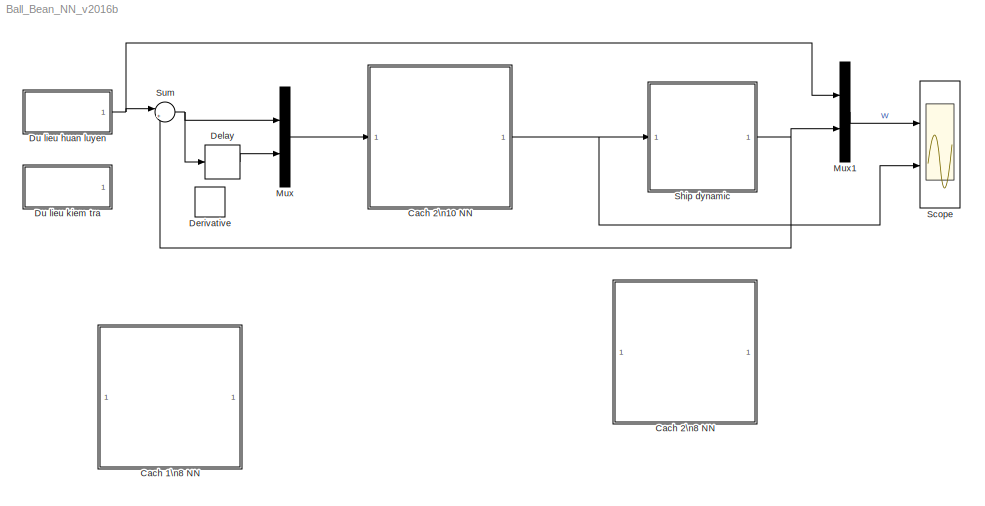
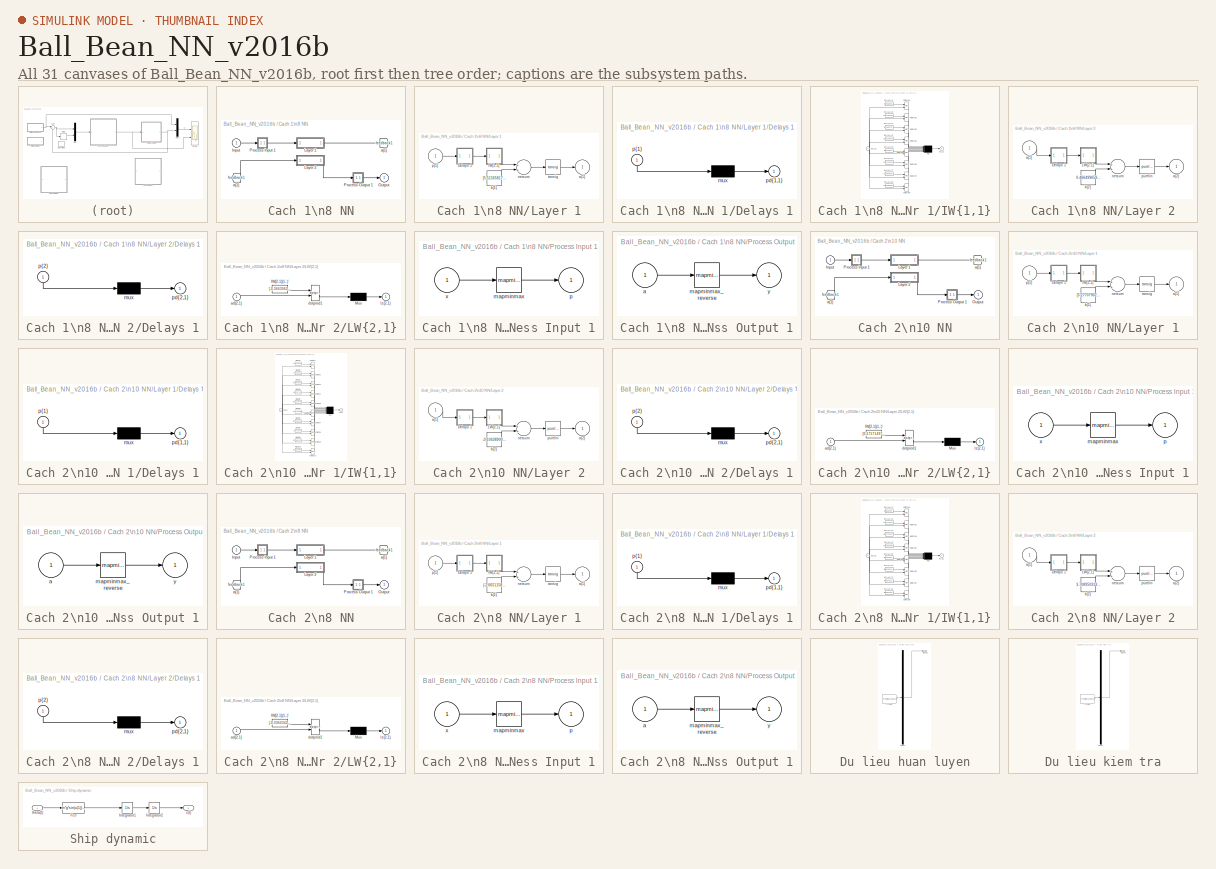
[diagram: thumbnail index - all 31 canvases of the model, root first then tree order]
MODEL Ball_Bean_NN_v2016b
KIND model
BLOCK [SubSystem] Cach 1\n8 NN
  Ports = [1, 1]
  RequestExecContextInheritance = off
  SID = 747
BLOCK [From] Cach 1\n8 NN/ a{1} 
  GotoTag = feedback1
  SID = 749
BLOCK [Inport] Cach 1\n8 NN/Input
  IconDisplay = Port number
  PortDimensions = 2
  SID = 748
BLOCK [SubSystem] Cach 1\n8 NN/Layer 1
  Ports = [1, 1]
  RequestExecContextInheritance = off
  SID = 750
BLOCK [SubSystem] Cach 1\n8 NN/Layer 1/Delays 1
  Ports = [1, 1]
  RequestExecContextInheritance = off
  SID = 752
BLOCK [Mux] Cach 1\n8 NN/Layer 1/Delays 1/mux
  Inputs = 1
  Ports = [1, 1]
  SID = 754
BLOCK [Outport] Cach 1\n8 NN/Layer 1/Delays 1/pd{1,1}
  IconDisplay = Port number
  SID = 755
BLOCK [Inport] Cach 1\n8 NN/Layer 1/Delays 1/p{1}
  IconDisplay = Port number
  PortDimensions = 2
  SID = 753
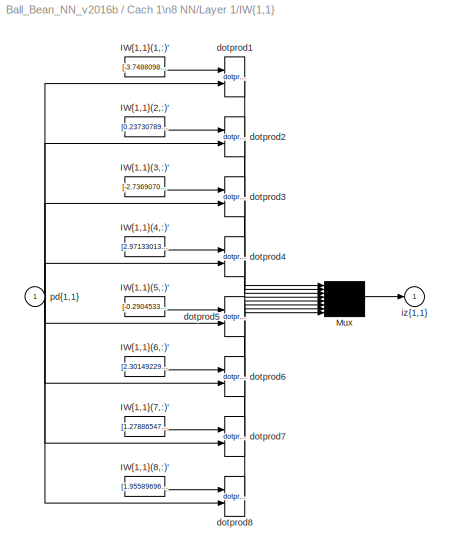
BLOCK [SubSystem] Cach 1\n8 NN/Layer 1/IW{1,1}
  Ports = [1, 1]
  RequestExecContextInheritance = off
  SID = 756
BLOCK [Constant] Cach 1\n8 NN/Layer 1/IW{1,1}/IW{1,1}(1,:)'
  SID = 758
  Value = [-3.7488098047373608068255634861998260021209716796875;0.045736782493255252746156003240685095079243183135986328125]
BLOCK [Constant] Cach 1\n8 NN/Layer 1/IW{1,1}/IW{1,1}(2,:)'
  SID = 759
  Value = [0.237307890926560627331554087504628114402294158935546875;4.997049988441521151116830878891050815582275390625]
BLOCK [Constant] Cach 1\n8 NN/Layer 1/IW{1,1}/IW{1,1}(3,:)'
  SID = 760
  Value = [-2.736907026698035760858829235075972974300384521484375;-3.9401746217218533985260364715941250324249267578125]
BLOCK [Constant] Cach 1\n8 NN/Layer 1/IW{1,1}/IW{1,1}(4,:)'
  SID = 761
  Value = [2.97133013131008549834177756565622985363006591796875;-0.78026636739935228970210800980567000806331634521484375]
BLOCK [Constant] Cach 1\n8 NN/Layer 1/IW{1,1}/IW{1,1}(5,:)'
  SID = 762
  Value = [-0.29045339392154245761190622943104244768619537353515625;-13.1257416849211683285147955757565796375274658203125]
BLOCK [Constant] Cach 1\n8 NN/Layer 1/IW{1,1}/IW{1,1}(6,:)'
  SID = 763
  Value = [2.30149229776702224370410476694814860820770263671875;3.311412799129558326427513748058117926120758056640625]
BLOCK [Constant] Cach 1\n8 NN/Layer 1/IW{1,1}/IW{1,1}(7,:)'
  SID = 764
  Value = [1.2788654714814768897923613621969707310199737548828125;-3.517836685005239161228018929250538349151611328125]
BLOCK [Constant] Cach 1\n8 NN/Layer 1/IW{1,1}/IW{1,1}(8,:)'
  SID = 765
  Value = [1.95589696698412662811961126863025128841400146484375;3.269084294186064720832973762298934161663055419921875]
BLOCK [Mux] Cach 1\n8 NN/Layer 1/IW{1,1}/Mux
  Inputs = 8
  Ports = [8, 1]
  SID = 766
BLOCK [Reference] Cach 1\n8 NN/Layer 1/IW{1,1}/dotprod1  REF=neural/Weight Functions/dotprod
  Ports = [2, 1]
  SID = 767
  SourceBlock = neural/Weight Functions/dotprod
  SourceType = DOTPROD
BLOCK [Reference] Cach 1\n8 NN/Layer 1/IW{1,1}/dotprod2  REF=neural/Weight Functions/dotprod
  Ports = [2, 1]
  SID = 768
  SourceBlock = neural/Weight Functions/dotprod
  SourceType = DOTPROD
BLOCK [Reference] Cach 1\n8 NN/Layer 1/IW{1,1}/dotprod3  REF=neural/Weight Functions/dotprod
  Ports = [2, 1]
  SID = 769
  SourceBlock = neural/Weight Functions/dotprod
  SourceType = DOTPROD
BLOCK [Reference] Cach 1\n8 NN/Layer 1/IW{1,1}/dotprod4  REF=neural/Weight Functions/dotprod
  Ports = [2, 1]
  SID = 770
  SourceBlock = neural/Weight Functions/dotprod
  SourceType = DOTPROD
BLOCK [Reference] Cach 1\n8 NN/Layer 1/IW{1,1}/dotprod5  REF=neural/Weight Functions/dotprod
  Ports = [2, 1]
  SID = 771
  SourceBlock = neural/Weight Functions/dotprod
  SourceType = DOTPROD
BLOCK [Reference] Cach 1\n8 NN/Layer 1/IW{1,1}/dotprod6  REF=neural/Weight Functions/dotprod
  Ports = [2, 1]
  SID = 772
  SourceBlock = neural/Weight Functions/dotprod
  SourceType = DOTPROD
BLOCK [Reference] Cach 1\n8 NN/Layer 1/IW{1,1}/dotprod7  REF=neural/Weight Functions/dotprod
  Ports = [2, 1]
  SID = 773
  SourceBlock = neural/Weight Functions/dotprod
  SourceType = DOTPROD
BLOCK [Reference] Cach 1\n8 NN/Layer 1/IW{1,1}/dotprod8  REF=neural/Weight Functions/dotprod
  Ports = [2, 1]
  SID = 774
  SourceBlock = neural/Weight Functions/dotprod
  SourceType = DOTPROD
BLOCK [Outport] Cach 1\n8 NN/Layer 1/IW{1,1}/iz{1,1}
  IconDisplay = Port number
  SID = 775
BLOCK [Inport] Cach 1\n8 NN/Layer 1/IW{1,1}/pd{1,1}
  IconDisplay = Port number
  PortDimensions = 2
  SID = 757
BLOCK [Outport] Cach 1\n8 NN/Layer 1/a{1}
  IconDisplay = Port number
  InitialOutput = [0;0;0;0;0;0;0;0]
  SID = 779
BLOCK [Constant] Cach 1\n8 NN/Layer 1/b{1}
  SID = 776
  Value = [5.5156581737566572343212101259268820285797119140625;0.41542198148677511593263034228584729135036468505859375;0.257346203482560376141208280387218110263347625732421875;-0.091240873919497589294991257702349685132503509521484375;-0.2950688313557885411597681013518013060092926025390625;3.6762636291859251969071920029819011688232421875;3.17671884908309554162997301318682730197906494140625;4.0416236971910333...<+34ch>
BLOCK [Sum] Cach 1\n8 NN/Layer 1/netsum
  Inputs = 2
  Ports = [2, 1]
  SID = 777
BLOCK [Inport] Cach 1\n8 NN/Layer 1/p{1}
  IconDisplay = Port number
  PortDimensions = 2
  SID = 751
BLOCK [Reference] Cach 1\n8 NN/Layer 1/tansig  REF=neural/Transfer Functions/tansig
  Ports = [1, 1]
  SID = 778
  SourceBlock = neural/Transfer Functions/tansig
  SourceType = TANSIG
BLOCK [SubSystem] Cach 1\n8 NN/Layer 2
  Ports = [1, 1]
  RequestExecContextInheritance = off
  SID = 780
BLOCK [SubSystem] Cach 1\n8 NN/Layer 2/Delays 1
  Ports = [1, 1]
  RequestExecContextInheritance = off
  SID = 782
BLOCK [Mux] Cach 1\n8 NN/Layer 2/Delays 1/mux
  Inputs = 1
  Ports = [1, 1]
  SID = 784
BLOCK [Outport] Cach 1\n8 NN/Layer 2/Delays 1/pd{2,1}
  IconDisplay = Port number
  SID = 785
BLOCK [Inport] Cach 1\n8 NN/Layer 2/Delays 1/p{2}
  IconDisplay = Port number
  PortDimensions = 8
  SID = 783
BLOCK [SubSystem] Cach 1\n8 NN/Layer 2/LW{2,1}
  Ports = [1, 1]
  RequestExecContextInheritance = off
  SID = 786
BLOCK [Constant] Cach 1\n8 NN/Layer 2/LW{2,1}/IW{2,1}(1,:)'
  SID = 788
  Value = [-0.3663062943517163549955739654251374304294586181640625;-4.74951698107200126486304725403897464275360107421875;0.2113194431993334898578495995025150477886199951171875;0.431504323669025302567803237252519465982913970947265625;-5.13030340469543855164147316827438771724700927734375;0.2472305967310420016236349738392163999378681182861328125;-0.20942302946738100555279515901929698884487152099609375;0.242214...<+49ch>
BLOCK [Mux] Cach 1\n8 NN/Layer 2/LW{2,1}/Mux
  Inputs = 1
  Ports = [1, 1]
  SID = 789
BLOCK [Inport] Cach 1\n8 NN/Layer 2/LW{2,1}/ad{2,1}
  IconDisplay = Port number
  PortDimensions = 8
  SID = 787
BLOCK [Reference] Cach 1\n8 NN/Layer 2/LW{2,1}/dotprod1  REF=neural/Weight Functions/dotprod
  Ports = [2, 1]
  SID = 790
  SourceBlock = neural/Weight Functions/dotprod
  SourceType = DOTPROD
BLOCK [Outport] Cach 1\n8 NN/Layer 2/LW{2,1}/lz{2,1}
  IconDisplay = Port number
  SID = 791
BLOCK [Inport] Cach 1\n8 NN/Layer 2/a{1} 
  IconDisplay = Port number
  PortDimensions = 8
  SID = 781
BLOCK [Outport] Cach 1\n8 NN/Layer 2/a{2}
  IconDisplay = Port number
  InitialOutput = 0
  SID = 795
BLOCK [Constant] Cach 1\n8 NN/Layer 2/b{2}
  SID = 792
  Value = 0.4664996596032013886912181988009251654148101806640625
BLOCK [Sum] Cach 1\n8 NN/Layer 2/netsum
  Inputs = 2
  Ports = [2, 1]
  SID = 793
BLOCK [Reference] Cach 1\n8 NN/Layer 2/purelin  REF=neural/Transfer Functions/purelin
  Ports = [1, 1]
  SID = 794
  SourceBlock = neural/Transfer Functions/purelin
  SourceType = PURELIN
BLOCK [Outport] Cach 1\n8 NN/Output
  IconDisplay = Port number
  InitialOutput = 0
  SID = 805
BLOCK [SubSystem] Cach 1\n8 NN/Process Input 1
  Ports = [1, 1]
  RequestExecContextInheritance = off
  SID = 796
BLOCK [Reference] Cach 1\n8 NN/Process Input 1/mapminmax  REF=neural/Processing Functions/mapminmax
  Ports = [1, 1]
  SID = 798
  SourceBlock = neural/Processing Functions/mapminmax
  SourceType = MAPMINMAX Preprocess
  xmax = [1.79481870778020380363670938095;35.9001145869152438194760179613]
  xmin = [-1.79489567973838592962465554592;-35.9000659257596055340400198475]
  ymax = 1
  ymin = -1
BLOCK [Outport] Cach 1\n8 NN/Process Input 1/p
  IconDisplay = Port number
  PortDimensions = 2
  SID = 799
BLOCK [Inport] Cach 1\n8 NN/Process Input 1/x
  IconDisplay = Port number
  PortDimensions = 2
  SID = 797
BLOCK [SubSystem] Cach 1\n8 NN/Process Output 1
  Ports = [1, 1]
  RequestExecContextInheritance = off
  SID = 800
BLOCK [Inport] Cach 1\n8 NN/Process Output 1/a
  IconDisplay = Port number
  PortDimensions = 1
  SID = 801
BLOCK [Reference] Cach 1\n8 NN/Process Output 1/mapminmax_reverse  REF=neural/Processing Functions/mapminmax_reverse
  Ports = [1, 1]
  SID = 802
  SourceBlock = neural/Processing Functions/mapminmax_reverse
  SourceType = MAPMINMAX Reverse Process
  xmax = 0.523598775598298815658893090585
  xmin = -0.523598775598298815658893090585
  ymax = 1
  ymin = -1
BLOCK [Outport] Cach 1\n8 NN/Process Output 1/y
  IconDisplay = Port number
  PortDimensions = 1
  SID = 803
BLOCK [Goto] Cach 1\n8 NN/a{1}
  GotoTag = feedback1
  SID = 804
BLOCK [SubSystem] Cach 2\n10 NN
  Ports = [1, 1]
  RequestExecContextInheritance = off
  SID = 684
BLOCK [From] Cach 2\n10 NN/ a{1} 
  GotoTag = feedback1
  SID = 686
BLOCK [Inport] Cach 2\n10 NN/Input
  IconDisplay = Port number
  PortDimensions = 2
  SID = 685
BLOCK [SubSystem] Cach 2\n10 NN/Layer 1
  Ports = [1, 1]
  RequestExecContextInheritance = off
  SID = 687
BLOCK [SubSystem] Cach 2\n10 NN/Layer 1/Delays 1
  Ports = [1, 1]
  RequestExecContextInheritance = off
  SID = 689
BLOCK [Mux] Cach 2\n10 NN/Layer 1/Delays 1/mux
  Inputs = 1
  Ports = [1, 1]
  SID = 691
BLOCK [Outport] Cach 2\n10 NN/Layer 1/Delays 1/pd{1,1}
  IconDisplay = Port number
  SID = 692
BLOCK [Inport] Cach 2\n10 NN/Layer 1/Delays 1/p{1}
  IconDisplay = Port number
  PortDimensions = 2
  SID = 690
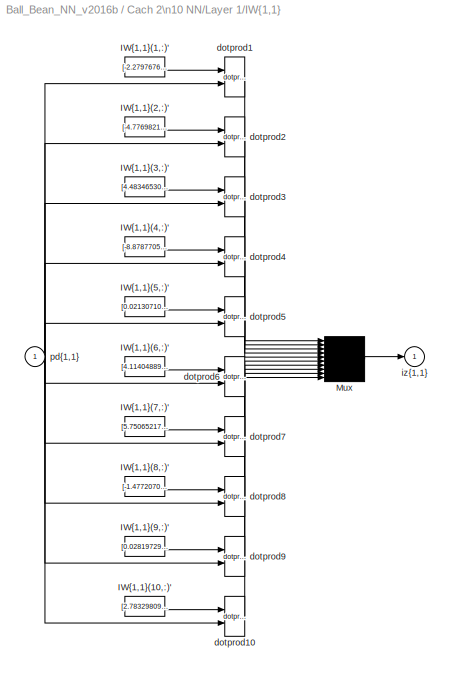
BLOCK [SubSystem] Cach 2\n10 NN/Layer 1/IW{1,1}
  Ports = [1, 1]
  RequestExecContextInheritance = off
  SID = 693
BLOCK [Constant] Cach 2\n10 NN/Layer 1/IW{1,1}/IW{1,1}(1,:)'
  SID = 695
  Value = [-2.2797676552253971493655626545660197734832763671875;-3.502244958718492728877436093171127140522003173828125]
BLOCK [Constant] Cach 2\n10 NN/Layer 1/IW{1,1}/IW{1,1}(10,:)'
  SID = 696
  Value = [2.783298096638222585141875242698006331920623779296875;-2.62667784662431103015478583984076976776123046875]
BLOCK [Constant] Cach 2\n10 NN/Layer 1/IW{1,1}/IW{1,1}(2,:)'
  SID = 697
  Value = [-4.77698212087745677223438178771175444126129150390625;1.701666339482249323822316000587306916713714599609375]
BLOCK [Constant] Cach 2\n10 NN/Layer 1/IW{1,1}/IW{1,1}(3,:)'
  SID = 698
  Value = [4.48346530523704966952891481923870742321014404296875;2.74325059392237591282537323422729969024658203125]
BLOCK [Constant] Cach 2\n10 NN/Layer 1/IW{1,1}/IW{1,1}(4,:)'
  SID = 699
  Value = [-8.8787705701287809034738529589958488941192626953125;8.80347368100989768890940467827022075653076171875]
BLOCK [Constant] Cach 2\n10 NN/Layer 1/IW{1,1}/IW{1,1}(5,:)'
  SID = 700
  Value = [0.0213071003389636304259369126157253049314022064208984375;4.65473604057297318803421148913912475109100341796875]
BLOCK [Constant] Cach 2\n10 NN/Layer 1/IW{1,1}/IW{1,1}(6,:)'
  SID = 701
  Value = [4.11404889277333385422252831631340086460113525390625;1.9276099380398454830043419860885478556156158447265625]
BLOCK [Constant] Cach 2\n10 NN/Layer 1/IW{1,1}/IW{1,1}(7,:)'
  SID = 702
  Value = [5.75065217522637528446693977457471191883087158203125;-0.7323723908210431066123646814958192408084869384765625]
BLOCK [Constant] Cach 2\n10 NN/Layer 1/IW{1,1}/IW{1,1}(8,:)'
  SID = 703
  Value = [-1.477207078651519456258256468572653830051422119140625;3.59919575488326159984353580512106418609619140625]
BLOCK [Constant] Cach 2\n10 NN/Layer 1/IW{1,1}/IW{1,1}(9,:)'
  SID = 704
  Value = [0.02819729517911832850085573909382219426333904266357421875;-3.257905597923292706497022663825191557407379150390625]
BLOCK [Mux] Cach 2\n10 NN/Layer 1/IW{1,1}/Mux
  Inputs = 10
  Ports = [10, 1]
  SID = 705
BLOCK [Reference] Cach 2\n10 NN/Layer 1/IW{1,1}/dotprod1  REF=neural/Weight Functions/dotprod
  Ports = [2, 1]
  SID = 706
  SourceBlock = neural/Weight Functions/dotprod
  SourceType = DOTPROD
BLOCK [Reference] Cach 2\n10 NN/Layer 1/IW{1,1}/dotprod10  REF=neural/Weight Functions/dotprod
  Ports = [2, 1]
  SID = 707
  SourceBlock = neural/Weight Functions/dotprod
  SourceType = DOTPROD
BLOCK [Reference] Cach 2\n10 NN/Layer 1/IW{1,1}/dotprod2  REF=neural/Weight Functions/dotprod
  Ports = [2, 1]
  SID = 708
  SourceBlock = neural/Weight Functions/dotprod
  SourceType = DOTPROD
BLOCK [Reference] Cach 2\n10 NN/Layer 1/IW{1,1}/dotprod3  REF=neural/Weight Functions/dotprod
  Ports = [2, 1]
  SID = 709
  SourceBlock = neural/Weight Functions/dotprod
  SourceType = DOTPROD
BLOCK [Reference] Cach 2\n10 NN/Layer 1/IW{1,1}/dotprod4  REF=neural/Weight Functions/dotprod
  Ports = [2, 1]
  SID = 710
  SourceBlock = neural/Weight Functions/dotprod
  SourceType = DOTPROD
BLOCK [Reference] Cach 2\n10 NN/Layer 1/IW{1,1}/dotprod5  REF=neural/Weight Functions/dotprod
  Ports = [2, 1]
  SID = 711
  SourceBlock = neural/Weight Functions/dotprod
  SourceType = DOTPROD
BLOCK [Reference] Cach 2\n10 NN/Layer 1/IW{1,1}/dotprod6  REF=neural/Weight Functions/dotprod
  Ports = [2, 1]
  SID = 712
  SourceBlock = neural/Weight Functions/dotprod
  SourceType = DOTPROD
BLOCK [Reference] Cach 2\n10 NN/Layer 1/IW{1,1}/dotprod7  REF=neural/Weight Functions/dotprod
  Ports = [2, 1]
  SID = 713
  SourceBlock = neural/Weight Functions/dotprod
  SourceType = DOTPROD
BLOCK [Reference] Cach 2\n10 NN/Layer 1/IW{1,1}/dotprod8  REF=neural/Weight Functions/dotprod
  Ports = [2, 1]
  SID = 714
  SourceBlock = neural/Weight Functions/dotprod
  SourceType = DOTPROD
BLOCK [Reference] Cach 2\n10 NN/Layer 1/IW{1,1}/dotprod9  REF=neural/Weight Functions/dotprod
  Ports = [2, 1]
  SID = 715
  SourceBlock = neural/Weight Functions/dotprod
  SourceType = DOTPROD
BLOCK [Outport] Cach 2\n10 NN/Layer 1/IW{1,1}/iz{1,1}
  IconDisplay = Port number
  SID = 716
BLOCK [Inport] Cach 2\n10 NN/Layer 1/IW{1,1}/pd{1,1}
  IconDisplay = Port number
  PortDimensions = 2
  SID = 694
BLOCK [Outport] Cach 2\n10 NN/Layer 1/a{1}
  IconDisplay = Port number
  InitialOutput = [0;0;0;0;0;0;0;0;0;0]
  SID = 720
BLOCK [Constant] Cach 2\n10 NN/Layer 1/b{1}
  SID = 717
  Value = [5.2770790270397309740246782894246280193328857421875;2.174030500263437470920280247810296714305877685546875;-3.28801516815363381596171166165731847286224365234375;-0.028691038809674308807107223628918291069567203521728515625;0.0127149931117040600192513721822251682169735431671142578125;0.1417708675961314168656457468387088738381862640380859375;0.018196998203845907854381280799316300544887781143188476562...<+163ch>
BLOCK [Sum] Cach 2\n10 NN/Layer 1/netsum
  Inputs = 2
  Ports = [2, 1]
  SID = 718
BLOCK [Inport] Cach 2\n10 NN/Layer 1/p{1}
  IconDisplay = Port number
  PortDimensions = 2
  SID = 688
BLOCK [Reference] Cach 2\n10 NN/Layer 1/tansig  REF=neural/Transfer Functions/tansig
  Ports = [1, 1]
  SID = 719
  SourceBlock = neural/Transfer Functions/tansig
  SourceType = TANSIG
BLOCK [SubSystem] Cach 2\n10 NN/Layer 2
  Ports = [1, 1]
  RequestExecContextInheritance = off
  SID = 721
BLOCK [SubSystem] Cach 2\n10 NN/Layer 2/Delays 1
  Ports = [1, 1]
  RequestExecContextInheritance = off
  SID = 723
BLOCK [Mux] Cach 2\n10 NN/Layer 2/Delays 1/mux
  Inputs = 1
  Ports = [1, 1]
  SID = 725
BLOCK [Outport] Cach 2\n10 NN/Layer 2/Delays 1/pd{2,1}
  IconDisplay = Port number
  SID = 726
BLOCK [Inport] Cach 2\n10 NN/Layer 2/Delays 1/p{2}
  IconDisplay = Port number
  PortDimensions = 10
  SID = 724
BLOCK [SubSystem] Cach 2\n10 NN/Layer 2/LW{2,1}
  Ports = [1, 1]
  RequestExecContextInheritance = off
  SID = 727
BLOCK [Constant] Cach 2\n10 NN/Layer 2/LW{2,1}/IW{2,1}(1,:)'
  SID = 729
  Value = [0.17571497241406730527302215705276466906070709228515625;-0.1442737729522455547570558564984821714460849761962890625;-0.059395420238290135006575809484274941496551036834716796875;-5.3959201117081221354965236969292163848876953125;4.871724534476609136390834464691579341888427734375;0.1714723988637835982995483163904282264411449432373046875;-4.7456468715381561196409165859222412109375;0.652170699393381347...<+146ch>
BLOCK [Mux] Cach 2\n10 NN/Layer 2/LW{2,1}/Mux
  Inputs = 1
  Ports = [1, 1]
  SID = 730
BLOCK [Inport] Cach 2\n10 NN/Layer 2/LW{2,1}/ad{2,1}
  IconDisplay = Port number
  PortDimensions = 10
  SID = 728
BLOCK [Reference] Cach 2\n10 NN/Layer 2/LW{2,1}/dotprod1  REF=neural/Weight Functions/dotprod
  Ports = [2, 1]
  SID = 731
  SourceBlock = neural/Weight Functions/dotprod
  SourceType = DOTPROD
BLOCK [Outport] Cach 2\n10 NN/Layer 2/LW{2,1}/lz{2,1}
  IconDisplay = Port number
  SID = 732
BLOCK [Inport] Cach 2\n10 NN/Layer 2/a{1} 
  IconDisplay = Port number
  PortDimensions = 10
  SID = 722
BLOCK [Outport] Cach 2\n10 NN/Layer 2/a{2}
  IconDisplay = Port number
  InitialOutput = 0
  SID = 736
BLOCK [Constant] Cach 2\n10 NN/Layer 2/b{2}
  SID = 733
  Value = -0.10438900361002352579209428995454800315201282501220703125
BLOCK [Sum] Cach 2\n10 NN/Layer 2/netsum
  Inputs = 2
  Ports = [2, 1]
  SID = 734
BLOCK [Reference] Cach 2\n10 NN/Layer 2/purelin  REF=neural/Transfer Functions/purelin
  Ports = [1, 1]
  SID = 735
  SourceBlock = neural/Transfer Functions/purelin
  SourceType = PURELIN
BLOCK [Outport] Cach 2\n10 NN/Output
  IconDisplay = Port number
  InitialOutput = 0
  SID = 746
BLOCK [SubSystem] Cach 2\n10 NN/Process Input 1
  Ports = [1, 1]
  RequestExecContextInheritance = off
  SID = 737
BLOCK [Reference] Cach 2\n10 NN/Process Input 1/mapminmax  REF=neural/Processing Functions/mapminmax
  Ports = [1, 1]
  SID = 739
  SourceBlock = neural/Processing Functions/mapminmax
  SourceType = MAPMINMAX Preprocess
  xmax = [1.79481870778020380363670938095;1.79481870778020380363670938095]
  xmin = [-1.79489567973838592962465554592;-1.79489567973838592962465554592]
  ymax = 1
  ymin = -1
BLOCK [Outport] Cach 2\n10 NN/Process Input 1/p
  IconDisplay = Port number
  PortDimensions = 2
  SID = 740
BLOCK [Inport] Cach 2\n10 NN/Process Input 1/x
  IconDisplay = Port number
  PortDimensions = 2
  SID = 738
BLOCK [SubSystem] Cach 2\n10 NN/Process Output 1
  Ports = [1, 1]
  RequestExecContextInheritance = off
  SID = 741
BLOCK [Inport] Cach 2\n10 NN/Process Output 1/a
  IconDisplay = Port number
  PortDimensions = 1
  SID = 742
BLOCK [Reference] Cach 2\n10 NN/Process Output 1/mapminmax_reverse  REF=neural/Processing Functions/mapminmax_reverse
  Ports = [1, 1]
  SID = 743
  SourceBlock = neural/Processing Functions/mapminmax_reverse
  SourceType = MAPMINMAX Reverse Process
  xmax = 0.523598775598298815658893090585
  xmin = -0.523598775598298815658893090585
  ymax = 1
  ymin = -1
BLOCK [Outport] Cach 2\n10 NN/Process Output 1/y
  IconDisplay = Port number
  PortDimensions = 1
  SID = 744
BLOCK [Goto] Cach 2\n10 NN/a{1}
  GotoTag = feedback1
  SID = 745
BLOCK [SubSystem] Cach 2\n8 NN
  Ports = [1, 1]
  RequestExecContextInheritance = off
  SID = 552
BLOCK [From] Cach 2\n8 NN/ a{1} 
  GotoTag = feedback1
  SID = 554
BLOCK [Inport] Cach 2\n8 NN/Input
  IconDisplay = Port number
  PortDimensions = 2
  SID = 553
BLOCK [SubSystem] Cach 2\n8 NN/Layer 1
  Ports = [1, 1]
  RequestExecContextInheritance = off
  SID = 555
BLOCK [SubSystem] Cach 2\n8 NN/Layer 1/Delays 1
  Ports = [1, 1]
  RequestExecContextInheritance = off
  SID = 557
BLOCK [Mux] Cach 2\n8 NN/Layer 1/Delays 1/mux
  Inputs = 1
  Ports = [1, 1]
  SID = 559
BLOCK [Outport] Cach 2\n8 NN/Layer 1/Delays 1/pd{1,1}
  IconDisplay = Port number
  SID = 560
BLOCK [Inport] Cach 2\n8 NN/Layer 1/Delays 1/p{1}
  IconDisplay = Port number
  PortDimensions = 2
  SID = 558
BLOCK [SubSystem] Cach 2\n8 NN/Layer 1/IW{1,1}
  Ports = [1, 1]
  RequestExecContextInheritance = off
  SID = 561
BLOCK [Constant] Cach 2\n8 NN/Layer 1/IW{1,1}/IW{1,1}(1,:)'
  SID = 563
  Value = [-3.166030482859578665255639862152747809886932373046875;-5.55992414753659236481553307385183870792388916015625]
BLOCK [Constant] Cach 2\n8 NN/Layer 1/IW{1,1}/IW{1,1}(2,:)'
  SID = 564
  Value = [7.75721544876872659557420774945057928562164306640625;8.822237395701780116041845758445560932159423828125]
BLOCK [Constant] Cach 2\n8 NN/Layer 1/IW{1,1}/IW{1,1}(3,:)'
  SID = 565
  Value = [0.0177012373306986679766250603051958023570477962493896484375;-9.2224873423576365638609786401502788066864013671875]
BLOCK [Constant] Cach 2\n8 NN/Layer 1/IW{1,1}/IW{1,1}(4,:)'
  SID = 566
  Value = [18.469849389561264985104571678675711154937744140625;-1.82005012290620271642183070071041584014892578125]
BLOCK [Constant] Cach 2\n8 NN/Layer 1/IW{1,1}/IW{1,1}(5,:)'
  SID = 567
  Value = [-9.3499581550587951284114751615561544895172119140625;-0.490326159803559924466043185020680539309978485107421875]
BLOCK [Constant] Cach 2\n8 NN/Layer 1/IW{1,1}/IW{1,1}(6,:)'
  SID = 568
  Value = [-8.9616642172909646291145691066049039363861083984375;8.8608894633885224578762063174508512020111083984375]
BLOCK [Constant] Cach 2\n8 NN/Layer 1/IW{1,1}/IW{1,1}(7,:)'
  SID = 569
  Value = [-6.1997312759503255819026890094392001628875732421875;11.0170287747126707245115539990365505218505859375]
BLOCK [Constant] Cach 2\n8 NN/Layer 1/IW{1,1}/IW{1,1}(8,:)'
  SID = 570
  Value = [-2.50504909105153839021795647568069398403167724609375;3.1014485247065000095290088211186230182647705078125]
BLOCK [Mux] Cach 2\n8 NN/Layer 1/IW{1,1}/Mux
  Inputs = 8
  Ports = [8, 1]
  SID = 571
BLOCK [Reference] Cach 2\n8 NN/Layer 1/IW{1,1}/dotprod1  REF=neural/Weight Functions/dotprod
  Ports = [2, 1]
  SID = 572
  SourceBlock = neural/Weight Functions/dotprod
  SourceType = DOTPROD
BLOCK [Reference] Cach 2\n8 NN/Layer 1/IW{1,1}/dotprod2  REF=neural/Weight Functions/dotprod
  Ports = [2, 1]
  SID = 573
  SourceBlock = neural/Weight Functions/dotprod
  SourceType = DOTPROD
BLOCK [Reference] Cach 2\n8 NN/Layer 1/IW{1,1}/dotprod3  REF=neural/Weight Functions/dotprod
  Ports = [2, 1]
  SID = 574
  SourceBlock = neural/Weight Functions/dotprod
  SourceType = DOTPROD
BLOCK [Reference] Cach 2\n8 NN/Layer 1/IW{1,1}/dotprod4  REF=neural/Weight Functions/dotprod
  Ports = [2, 1]
  SID = 575
  SourceBlock = neural/Weight Functions/dotprod
  SourceType = DOTPROD
BLOCK [Reference] Cach 2\n8 NN/Layer 1/IW{1,1}/dotprod5  REF=neural/Weight Functions/dotprod
  Ports = [2, 1]
  SID = 576
  SourceBlock = neural/Weight Functions/dotprod
  SourceType = DOTPROD
BLOCK [Reference] Cach 2\n8 NN/Layer 1/IW{1,1}/dotprod6  REF=neural/Weight Functions/dotprod
  Ports = [2, 1]
  SID = 577
  SourceBlock = neural/Weight Functions/dotprod
  SourceType = DOTPROD
BLOCK [Reference] Cach 2\n8 NN/Layer 1/IW{1,1}/dotprod7  REF=neural/Weight Functions/dotprod
  Ports = [2, 1]
  SID = 578
  SourceBlock = neural/Weight Functions/dotprod
  SourceType = DOTPROD
BLOCK [Reference] Cach 2\n8 NN/Layer 1/IW{1,1}/dotprod8  REF=neural/Weight Functions/dotprod
  Ports = [2, 1]
  SID = 579
  SourceBlock = neural/Weight Functions/dotprod
  SourceType = DOTPROD
BLOCK [Outport] Cach 2\n8 NN/Layer 1/IW{1,1}/iz{1,1}
  IconDisplay = Port number
  SID = 580
BLOCK [Inport] Cach 2\n8 NN/Layer 1/IW{1,1}/pd{1,1}
  IconDisplay = Port number
  PortDimensions = 2
  SID = 562
BLOCK [Outport] Cach 2\n8 NN/Layer 1/a{1}
  IconDisplay = Port number
  InitialOutput = [0;0;0;0;0;0;0;0]
  SID = 584
BLOCK [Constant] Cach 2\n8 NN/Layer 1/b{1}
  SID = 581
  Value = [-2.665115811441488791189158291672356426715850830078125;-15.5670386609506952169112992123700678348541259765625;0.43774834483061209056131701800040900707244873046875;-2.480347096899180314721888862550258636474609375;0.436367551962506705631739123418810777366161346435546875;0.364583997550048943825373726213001646101474761962890625;6.66233421384612256588297896087169647216796875;-3.395444491633917927231323...<+27ch>
BLOCK [Sum] Cach 2\n8 NN/Layer 1/netsum
  Inputs = 2
  Ports = [2, 1]
  SID = 582
BLOCK [Inport] Cach 2\n8 NN/Layer 1/p{1}
  IconDisplay = Port number
  PortDimensions = 2
  SID = 556
BLOCK [Reference] Cach 2\n8 NN/Layer 1/tansig  REF=neural/Transfer Functions/tansig
  Ports = [1, 1]
  SID = 583
  SourceBlock = neural/Transfer Functions/tansig
  SourceType = TANSIG
BLOCK [SubSystem] Cach 2\n8 NN/Layer 2
  Ports = [1, 1]
  RequestExecContextInheritance = off
  SID = 585
BLOCK [SubSystem] Cach 2\n8 NN/Layer 2/Delays 1
  Ports = [1, 1]
  RequestExecContextInheritance = off
  SID = 587
BLOCK [Mux] Cach 2\n8 NN/Layer 2/Delays 1/mux
  Inputs = 1
  Ports = [1, 1]
  SID = 589
BLOCK [Outport] Cach 2\n8 NN/Layer 2/Delays 1/pd{2,1}
  IconDisplay = Port number
  SID = 590
BLOCK [Inport] Cach 2\n8 NN/Layer 2/Delays 1/p{2}
  IconDisplay = Port number
  PortDimensions = 8
  SID = 588
BLOCK [SubSystem] Cach 2\n8 NN/Layer 2/LW{2,1}
  Ports = [1, 1]
  RequestExecContextInheritance = off
  SID = 591
BLOCK [Constant] Cach 2\n8 NN/Layer 2/LW{2,1}/IW{2,1}(1,:)'
  SID = 593
  Value = [-0.036034266228908894136306884092846303246915340423583984375;-0.04262085885997822509718702121972455643117427825927734375;-5.174673934781960582540705217979848384857177734375;-0.08847431722565061995577906373000587336719036102294921875;4.9133574139851958761937567032873630523681640625;-6.0372621016925496206795287434943020343780517578125;-1.6370157212879725694421040316228754818439483642578125;0.015620...<+52ch>
BLOCK [Mux] Cach 2\n8 NN/Layer 2/LW{2,1}/Mux
  Inputs = 1
  Ports = [1, 1]
  SID = 594
BLOCK [Inport] Cach 2\n8 NN/Layer 2/LW{2,1}/ad{2,1}
  IconDisplay = Port number
  PortDimensions = 8
  SID = 592
BLOCK [Reference] Cach 2\n8 NN/Layer 2/LW{2,1}/dotprod1  REF=neural/Weight Functions/dotprod
  Ports = [2, 1]
  SID = 595
  SourceBlock = neural/Weight Functions/dotprod
  SourceType = DOTPROD
BLOCK [Outport] Cach 2\n8 NN/Layer 2/LW{2,1}/lz{2,1}
  IconDisplay = Port number
  SID = 596
BLOCK [Inport] Cach 2\n8 NN/Layer 2/a{1} 
  IconDisplay = Port number
  PortDimensions = 8
  SID = 586
BLOCK [Outport] Cach 2\n8 NN/Layer 2/a{2}
  IconDisplay = Port number
  InitialOutput = 0
  SID = 600
BLOCK [Constant] Cach 2\n8 NN/Layer 2/b{2}
  SID = 597
  Value = 3.708950313361973893933054569060914218425750732421875
BLOCK [Sum] Cach 2\n8 NN/Layer 2/netsum
  Inputs = 2
  Ports = [2, 1]
  SID = 598
BLOCK [Reference] Cach 2\n8 NN/Layer 2/purelin  REF=neural/Transfer Functions/purelin
  Ports = [1, 1]
  SID = 599
  SourceBlock = neural/Transfer Functions/purelin
  SourceType = PURELIN
BLOCK [Outport] Cach 2\n8 NN/Output
  IconDisplay = Port number
  InitialOutput = 0
  SID = 610
BLOCK [SubSystem] Cach 2\n8 NN/Process Input 1
  Ports = [1, 1]
  RequestExecContextInheritance = off
  SID = 601
BLOCK [Reference] Cach 2\n8 NN/Process Input 1/mapminmax  REF=neural/Processing Functions/mapminmax
  Ports = [1, 1]
  SID = 603
  SourceBlock = neural/Processing Functions/mapminmax
  SourceType = MAPMINMAX Preprocess
  xmax = [1.79481870778020380363670938095;1.79481870778020380363670938095]
  xmin = [-1.79489567973838592962465554592;-1.79489567973838592962465554592]
  ymax = 1
  ymin = -1
BLOCK [Outport] Cach 2\n8 NN/Process Input 1/p
  IconDisplay = Port number
  PortDimensions = 2
  SID = 604
BLOCK [Inport] Cach 2\n8 NN/Process Input 1/x
  IconDisplay = Port number
  PortDimensions = 2
  SID = 602
BLOCK [SubSystem] Cach 2\n8 NN/Process Output 1
  Ports = [1, 1]
  RequestExecContextInheritance = off
  SID = 605
BLOCK [Inport] Cach 2\n8 NN/Process Output 1/a
  IconDisplay = Port number
  PortDimensions = 1
  SID = 606
BLOCK [Reference] Cach 2\n8 NN/Process Output 1/mapminmax_reverse  REF=neural/Processing Functions/mapminmax_reverse
  Ports = [1, 1]
  SID = 607
  SourceBlock = neural/Processing Functions/mapminmax_reverse
  SourceType = MAPMINMAX Reverse Process
  xmax = 0.523598775598298815658893090585
  xmin = -0.523598775598298815658893090585
  ymax = 1
  ymin = -1
BLOCK [Outport] Cach 2\n8 NN/Process Output 1/y
  IconDisplay = Port number
  PortDimensions = 1
  SID = 608
BLOCK [Goto] Cach 2\n8 NN/a{1}
  GotoTag = feedback1
  SID = 609
BLOCK [Delay] Delay
  DelayLength = 1
  InputPortMap = u0
  Ports = [1, 1]
  SID = 433
BLOCK [Derivative] Derivative
  SID = 31
BLOCK [SubSystem] Du lieu huan luyen
  ClipboardFcn = sigbuilder_block('clipboard');
  CloseFcn = sigbuilder_block('close');
  ContinueFcn = sigbuilder_block('continue');
  CopyFcn = sigbuilder_block('copy');
  DeleteFcn = sigbuilder_block('delete');
  LoadFcn = sigbuilder_block('load');
  MaskHideContents = on
  ModelCloseFcn = sigbuilder_block('modelClose');
  NameChangeFcn = sigbuilder_block('namechange');
  OpenFcn = sigbuilder_block('open',[316.2 97.8 550.8 400.2 ]);
  PauseFcn = sigbuilder_block('pause');
  Ports = [0, 1]
  PreSaveFcn = sigbuilder_block('preSave');
  RequestExecContextInheritance = off
  SID = 38
  StartFcn = sigbuilder_block('start');
  StopFcn = sigbuilder_block('stop');
  Tag = STV Subsys
BLOCK [Demux] Du lieu huan luyen/Demux
  Outputs = 1
  Ports = [1, 1]
  SID = 38:1
  Tag = STV Demux
BLOCK [FromWorkspace] Du lieu huan luyen/FromWs
  SID = 38:2
  SampleTime = 0
  SigBuilderData = DataTag1
  Tag = STV FromWs
  VariableName = tuvar
  VnvData = DataTag2
  ZeroCross = on
BLOCK [Outport] Du lieu huan luyen/Signal 1
  IconDisplay = Port number
  SID = 38:3
  Tag = STV Outport
BLOCK [SubSystem] Du lieu kiem tra
  ClipboardFcn = sigbuilder_block('clipboard');
  CloseFcn = sigbuilder_block('close');
  ContinueFcn = sigbuilder_block('continue');
  CopyFcn = sigbuilder_block('copy');
  DeleteFcn = sigbuilder_block('delete');
  LoadFcn = sigbuilder_block('load');
  MaskHideContents = on
  ModelCloseFcn = sigbuilder_block('modelClose');
  NameChangeFcn = sigbuilder_block('namechange');
  OpenFcn = sigbuilder_block('open',[316.2 97.8 550.8 400.2 ]);
  PauseFcn = sigbuilder_block('pause');
  Ports = [0, 1]
  PreSaveFcn = sigbuilder_block('preSave');
  RequestExecContextInheritance = off
  SID = 432
  StartFcn = sigbuilder_block('start');
  StopFcn = sigbuilder_block('stop');
  Tag = STV Subsys
BLOCK [Demux] Du lieu kiem tra/Demux
  Outputs = 1
  Ports = [1, 1]
  SID = 432:1
  Tag = STV Demux
BLOCK [FromWorkspace] Du lieu kiem tra/FromWs
  SID = 432:2
  SampleTime = 0
  SigBuilderData = DataTag3
  Tag = STV FromWs
  VariableName = tuvar
  VnvData = DataTag4
  ZeroCross = on
BLOCK [Outport] Du lieu kiem tra/Signal 1
  IconDisplay = Port number
  SID = 432:3
  Tag = STV Outport
BLOCK [Mux] Mux
  DisplayOption = bar
  Inputs = 2
  Ports = [2, 1]
  SID = 7
BLOCK [Mux] Mux1
  DisplayOption = bar
  Inputs = 2
  Ports = [2, 1]
  SID = 34
BLOCK [Scope] Scope
  Floating = off
  NumInputPorts = 2
  Ports = [2]
  SID = 11
  ScopeSpecificationString = Simulink.scopes.TimeScopeBlockCfg('CurrentConfiguration', extmgr.ConfigurationSet(extmgr.Configuration('Core','General UI',true,'FigureColor',[1 1 1]),extmgr.Configuration('Core','Source UI',true),extmgr.Configuration('Sources','WiredSimulink',true),extmgr.Configuration('Visuals','Time Domain',true,'SerializedDisplays',{struct('MinYLimReal','-1.12019','MaxYLimReal','1.08002','YLabelReal','','MinYL...<+2313ch>
BLOCK [SubSystem] Ship dynamic
  Ports = [1, 1]
  RequestExecContextInheritance = off
  SID = 12
BLOCK [Fcn] Ship dynamic/Fcn
  Expr = m*g*sin(u(1)) / (J/R^2 + m)
  SID = 14
BLOCK [Integrator] Ship dynamic/Integrator1
  Ports = [1, 1]
  SID = 17
BLOCK [Integrator] Ship dynamic/Integrator2
  Ports = [1, 1]
  SID = 33
BLOCK [Inport] Ship dynamic/theta(t)
  IconDisplay = Port number
  SID = 13
BLOCK [Outport] Ship dynamic/x(t)
  IconDisplay = Port number
  SID = 22
BLOCK [Sum] Sum
  IconShape = round
  InputSameDT = off
  Inputs = |+-
  OutDataTypeStr = Inherit: Inherit via internal rule
  Ports = [2, 1]
  SID = 28
  SaturateOnIntegerOverflow = off
LINE Cach 1\n8 NN/ a{1} :1 -> Cach 1\n8 NN/Layer 2:1
LINE Cach 1\n8 NN/Input:1 -> Cach 1\n8 NN/Process Input 1:1
LINE Cach 1\n8 NN/Layer 1/Delays 1/mux:1 -> Cach 1\n8 NN/Layer 1/Delays 1/pd{1,1}:1
LINE Cach 1\n8 NN/Layer 1/Delays 1/p{1}:1 -> Cach 1\n8 NN/Layer 1/Delays 1/mux:1
LINE Cach 1\n8 NN/Layer 1/Delays 1:1 -> Cach 1\n8 NN/Layer 1/IW{1,1}:1
LINE Cach 1\n8 NN/Layer 1/IW{1,1}/IW{1,1}(1,:)':1 -> Cach 1\n8 NN/Layer 1/IW{1,1}/dotprod1:1
LINE Cach 1\n8 NN/Layer 1/IW{1,1}/IW{1,1}(2,:)':1 -> Cach 1\n8 NN/Layer 1/IW{1,1}/dotprod2:1
LINE Cach 1\n8 NN/Layer 1/IW{1,1}/IW{1,1}(3,:)':1 -> Cach 1\n8 NN/Layer 1/IW{1,1}/dotprod3:1
LINE Cach 1\n8 NN/Layer 1/IW{1,1}/IW{1,1}(4,:)':1 -> Cach 1\n8 NN/Layer 1/IW{1,1}/dotprod4:1
LINE Cach 1\n8 NN/Layer 1/IW{1,1}/IW{1,1}(5,:)':1 -> Cach 1\n8 NN/Layer 1/IW{1,1}/dotprod5:1
LINE Cach 1\n8 NN/Layer 1/IW{1,1}/IW{1,1}(6,:)':1 -> Cach 1\n8 NN/Layer 1/IW{1,1}/dotprod6:1
LINE Cach 1\n8 NN/Layer 1/IW{1,1}/IW{1,1}(7,:)':1 -> Cach 1\n8 NN/Layer 1/IW{1,1}/dotprod7:1
LINE Cach 1\n8 NN/Layer 1/IW{1,1}/IW{1,1}(8,:)':1 -> Cach 1\n8 NN/Layer 1/IW{1,1}/dotprod8:1
LINE Cach 1\n8 NN/Layer 1/IW{1,1}/Mux:1 -> Cach 1\n8 NN/Layer 1/IW{1,1}/iz{1,1}:1
LINE Cach 1\n8 NN/Layer 1/IW{1,1}/dotprod1:1 -> Cach 1\n8 NN/Layer 1/IW{1,1}/Mux:1
LINE Cach 1\n8 NN/Layer 1/IW{1,1}/dotprod2:1 -> Cach 1\n8 NN/Layer 1/IW{1,1}/Mux:2
LINE Cach 1\n8 NN/Layer 1/IW{1,1}/dotprod3:1 -> Cach 1\n8 NN/Layer 1/IW{1,1}/Mux:3
LINE Cach 1\n8 NN/Layer 1/IW{1,1}/dotprod4:1 -> Cach 1\n8 NN/Layer 1/IW{1,1}/Mux:4
LINE Cach 1\n8 NN/Layer 1/IW{1,1}/dotprod5:1 -> Cach 1\n8 NN/Layer 1/IW{1,1}/Mux:5
LINE Cach 1\n8 NN/Layer 1/IW{1,1}/dotprod6:1 -> Cach 1\n8 NN/Layer 1/IW{1,1}/Mux:6
LINE Cach 1\n8 NN/Layer 1/IW{1,1}/dotprod7:1 -> Cach 1\n8 NN/Layer 1/IW{1,1}/Mux:7
LINE Cach 1\n8 NN/Layer 1/IW{1,1}/dotprod8:1 -> Cach 1\n8 NN/Layer 1/IW{1,1}/Mux:8
NET Cach 1\n8 NN/Layer 1/IW{1,1}/pd{1,1}:1 -> Cach 1\n8 NN/Layer 1/IW{1,1}/dotprod1:2, Cach 1\n8 NN/Layer 1/IW{1,1}/dotprod2:2, Cach 1\n8 NN/Layer 1/IW{1,1}/dotprod3:2, Cach 1\n8 NN/Layer 1/IW{1,1}/dotprod4:2, Cach 1\n8 NN/Layer 1/IW{1,1}/dotprod5:2, Cach 1\n8 NN/Layer 1/IW{1,1}/dotprod6:2, Cach 1\n8 NN/Layer 1/IW{1,1}/dotprod7:2, Cach 1\n8 NN/Layer 1/IW{1,1}/dotprod8:2
LINE Cach 1\n8 NN/Layer 1/IW{1,1}:1 -> Cach 1\n8 NN/Layer 1/netsum:1
LINE Cach 1\n8 NN/Layer 1/b{1}:1 -> Cach 1\n8 NN/Layer 1/netsum:2
LINE Cach 1\n8 NN/Layer 1/netsum:1 -> Cach 1\n8 NN/Layer 1/tansig:1
LINE Cach 1\n8 NN/Layer 1/p{1}:1 -> Cach 1\n8 NN/Layer 1/Delays 1:1
LINE Cach 1\n8 NN/Layer 1/tansig:1 -> Cach 1\n8 NN/Layer 1/a{1}:1
LINE Cach 1\n8 NN/Layer 1:1 -> Cach 1\n8 NN/a{1}:1
LINE Cach 1\n8 NN/Layer 2/Delays 1/mux:1 -> Cach 1\n8 NN/Layer 2/Delays 1/pd{2,1}:1
LINE Cach 1\n8 NN/Layer 2/Delays 1/p{2}:1 -> Cach 1\n8 NN/Layer 2/Delays 1/mux:1
LINE Cach 1\n8 NN/Layer 2/Delays 1:1 -> Cach 1\n8 NN/Layer 2/LW{2,1}:1
LINE Cach 1\n8 NN/Layer 2/LW{2,1}/IW{2,1}(1,:)':1 -> Cach 1\n8 NN/Layer 2/LW{2,1}/dotprod1:1
LINE Cach 1\n8 NN/Layer 2/LW{2,1}/Mux:1 -> Cach 1\n8 NN/Layer 2/LW{2,1}/lz{2,1}:1
LINE Cach 1\n8 NN/Layer 2/LW{2,1}/ad{2,1}:1 -> Cach 1\n8 NN/Layer 2/LW{2,1}/dotprod1:2
LINE Cach 1\n8 NN/Layer 2/LW{2,1}/dotprod1:1 -> Cach 1\n8 NN/Layer 2/LW{2,1}/Mux:1
LINE Cach 1\n8 NN/Layer 2/LW{2,1}:1 -> Cach 1\n8 NN/Layer 2/netsum:1
LINE Cach 1\n8 NN/Layer 2/a{1} :1 -> Cach 1\n8 NN/Layer 2/Delays 1:1
LINE Cach 1\n8 NN/Layer 2/b{2}:1 -> Cach 1\n8 NN/Layer 2/netsum:2
LINE Cach 1\n8 NN/Layer 2/netsum:1 -> Cach 1\n8 NN/Layer 2/purelin:1
LINE Cach 1\n8 NN/Layer 2/purelin:1 -> Cach 1\n8 NN/Layer 2/a{2}:1
LINE Cach 1\n8 NN/Layer 2:1 -> Cach 1\n8 NN/Process Output 1:1
LINE Cach 1\n8 NN/Process Input 1/mapminmax:1 -> Cach 1\n8 NN/Process Input 1/p:1
LINE Cach 1\n8 NN/Process Input 1/x:1 -> Cach 1\n8 NN/Process Input 1/mapminmax:1
LINE Cach 1\n8 NN/Process Input 1:1 -> Cach 1\n8 NN/Layer 1:1
LINE Cach 1\n8 NN/Process Output 1/a:1 -> Cach 1\n8 NN/Process Output 1/mapminmax_reverse:1
LINE Cach 1\n8 NN/Process Output 1/mapminmax_reverse:1 -> Cach 1\n8 NN/Process Output 1/y:1
LINE Cach 1\n8 NN/Process Output 1:1 -> Cach 1\n8 NN/Output:1
LINE Cach 2\n10 NN/ a{1} :1 -> Cach 2\n10 NN/Layer 2:1
LINE Cach 2\n10 NN/Input:1 -> Cach 2\n10 NN/Process Input 1:1
LINE Cach 2\n10 NN/Layer 1/Delays 1/mux:1 -> Cach 2\n10 NN/Layer 1/Delays 1/pd{1,1}:1
LINE Cach 2\n10 NN/Layer 1/Delays 1/p{1}:1 -> Cach 2\n10 NN/Layer 1/Delays 1/mux:1
LINE Cach 2\n10 NN/Layer 1/Delays 1:1 -> Cach 2\n10 NN/Layer 1/IW{1,1}:1
LINE Cach 2\n10 NN/Layer 1/IW{1,1}/IW{1,1}(1,:)':1 -> Cach 2\n10 NN/Layer 1/IW{1,1}/dotprod1:1
LINE Cach 2\n10 NN/Layer 1/IW{1,1}/IW{1,1}(10,:)':1 -> Cach 2\n10 NN/Layer 1/IW{1,1}/dotprod10:1
LINE Cach 2\n10 NN/Layer 1/IW{1,1}/IW{1,1}(2,:)':1 -> Cach 2\n10 NN/Layer 1/IW{1,1}/dotprod2:1
LINE Cach 2\n10 NN/Layer 1/IW{1,1}/IW{1,1}(3,:)':1 -> Cach 2\n10 NN/Layer 1/IW{1,1}/dotprod3:1
LINE Cach 2\n10 NN/Layer 1/IW{1,1}/IW{1,1}(4,:)':1 -> Cach 2\n10 NN/Layer 1/IW{1,1}/dotprod4:1
LINE Cach 2\n10 NN/Layer 1/IW{1,1}/IW{1,1}(5,:)':1 -> Cach 2\n10 NN/Layer 1/IW{1,1}/dotprod5:1
LINE Cach 2\n10 NN/Layer 1/IW{1,1}/IW{1,1}(6,:)':1 -> Cach 2\n10 NN/Layer 1/IW{1,1}/dotprod6:1
LINE Cach 2\n10 NN/Layer 1/IW{1,1}/IW{1,1}(7,:)':1 -> Cach 2\n10 NN/Layer 1/IW{1,1}/dotprod7:1
LINE Cach 2\n10 NN/Layer 1/IW{1,1}/IW{1,1}(8,:)':1 -> Cach 2\n10 NN/Layer 1/IW{1,1}/dotprod8:1
LINE Cach 2\n10 NN/Layer 1/IW{1,1}/IW{1,1}(9,:)':1 -> Cach 2\n10 NN/Layer 1/IW{1,1}/dotprod9:1
LINE Cach 2\n10 NN/Layer 1/IW{1,1}/Mux:1 -> Cach 2\n10 NN/Layer 1/IW{1,1}/iz{1,1}:1
LINE Cach 2\n10 NN/Layer 1/IW{1,1}/dotprod10:1 -> Cach 2\n10 NN/Layer 1/IW{1,1}/Mux:10
LINE Cach 2\n10 NN/Layer 1/IW{1,1}/dotprod1:1 -> Cach 2\n10 NN/Layer 1/IW{1,1}/Mux:1
LINE Cach 2\n10 NN/Layer 1/IW{1,1}/dotprod2:1 -> Cach 2\n10 NN/Layer 1/IW{1,1}/Mux:2
LINE Cach 2\n10 NN/Layer 1/IW{1,1}/dotprod3:1 -> Cach 2\n10 NN/Layer 1/IW{1,1}/Mux:3
LINE Cach 2\n10 NN/Layer 1/IW{1,1}/dotprod4:1 -> Cach 2\n10 NN/Layer 1/IW{1,1}/Mux:4
LINE Cach 2\n10 NN/Layer 1/IW{1,1}/dotprod5:1 -> Cach 2\n10 NN/Layer 1/IW{1,1}/Mux:5
LINE Cach 2\n10 NN/Layer 1/IW{1,1}/dotprod6:1 -> Cach 2\n10 NN/Layer 1/IW{1,1}/Mux:6
LINE Cach 2\n10 NN/Layer 1/IW{1,1}/dotprod7:1 -> Cach 2\n10 NN/Layer 1/IW{1,1}/Mux:7
LINE Cach 2\n10 NN/Layer 1/IW{1,1}/dotprod8:1 -> Cach 2\n10 NN/Layer 1/IW{1,1}/Mux:8
LINE Cach 2\n10 NN/Layer 1/IW{1,1}/dotprod9:1 -> Cach 2\n10 NN/Layer 1/IW{1,1}/Mux:9
NET Cach 2\n10 NN/Layer 1/IW{1,1}/pd{1,1}:1 -> Cach 2\n10 NN/Layer 1/IW{1,1}/dotprod10:2, Cach 2\n10 NN/Layer 1/IW{1,1}/dotprod1:2, Cach 2\n10 NN/Layer 1/IW{1,1}/dotprod2:2, Cach 2\n10 NN/Layer 1/IW{1,1}/dotprod3:2, Cach 2\n10 NN/Layer 1/IW{1,1}/dotprod4:2, Cach 2\n10 NN/Layer 1/IW{1,1}/dotprod5:2, Cach 2\n10 NN/Layer 1/IW{1,1}/dotprod6:2, Cach 2\n10 NN/Layer 1/IW{1,1}/dotprod7:2, Cach 2\n10 NN/Layer 1/IW{1,1}/dotprod8:2, Cach 2\n10 NN/Layer 1/IW{1,1}/dotprod9:2
LINE Cach 2\n10 NN/Layer 1/IW{1,1}:1 -> Cach 2\n10 NN/Layer 1/netsum:1
LINE Cach 2\n10 NN/Layer 1/b{1}:1 -> Cach 2\n10 NN/Layer 1/netsum:2
LINE Cach 2\n10 NN/Layer 1/netsum:1 -> Cach 2\n10 NN/Layer 1/tansig:1
LINE Cach 2\n10 NN/Layer 1/p{1}:1 -> Cach 2\n10 NN/Layer 1/Delays 1:1
LINE Cach 2\n10 NN/Layer 1/tansig:1 -> Cach 2\n10 NN/Layer 1/a{1}:1
LINE Cach 2\n10 NN/Layer 1:1 -> Cach 2\n10 NN/a{1}:1
LINE Cach 2\n10 NN/Layer 2/Delays 1/mux:1 -> Cach 2\n10 NN/Layer 2/Delays 1/pd{2,1}:1
LINE Cach 2\n10 NN/Layer 2/Delays 1/p{2}:1 -> Cach 2\n10 NN/Layer 2/Delays 1/mux:1
LINE Cach 2\n10 NN/Layer 2/Delays 1:1 -> Cach 2\n10 NN/Layer 2/LW{2,1}:1
LINE Cach 2\n10 NN/Layer 2/LW{2,1}/IW{2,1}(1,:)':1 -> Cach 2\n10 NN/Layer 2/LW{2,1}/dotprod1:1
LINE Cach 2\n10 NN/Layer 2/LW{2,1}/Mux:1 -> Cach 2\n10 NN/Layer 2/LW{2,1}/lz{2,1}:1
LINE Cach 2\n10 NN/Layer 2/LW{2,1}/ad{2,1}:1 -> Cach 2\n10 NN/Layer 2/LW{2,1}/dotprod1:2
LINE Cach 2\n10 NN/Layer 2/LW{2,1}/dotprod1:1 -> Cach 2\n10 NN/Layer 2/LW{2,1}/Mux:1
LINE Cach 2\n10 NN/Layer 2/LW{2,1}:1 -> Cach 2\n10 NN/Layer 2/netsum:1
LINE Cach 2\n10 NN/Layer 2/a{1} :1 -> Cach 2\n10 NN/Layer 2/Delays 1:1
LINE Cach 2\n10 NN/Layer 2/b{2}:1 -> Cach 2\n10 NN/Layer 2/netsum:2
LINE Cach 2\n10 NN/Layer 2/netsum:1 -> Cach 2\n10 NN/Layer 2/purelin:1
LINE Cach 2\n10 NN/Layer 2/purelin:1 -> Cach 2\n10 NN/Layer 2/a{2}:1
LINE Cach 2\n10 NN/Layer 2:1 -> Cach 2\n10 NN/Process Output 1:1
LINE Cach 2\n10 NN/Process Input 1/mapminmax:1 -> Cach 2\n10 NN/Process Input 1/p:1
LINE Cach 2\n10 NN/Process Input 1/x:1 -> Cach 2\n10 NN/Process Input 1/mapminmax:1
LINE Cach 2\n10 NN/Process Input 1:1 -> Cach 2\n10 NN/Layer 1:1
LINE Cach 2\n10 NN/Process Output 1/a:1 -> Cach 2\n10 NN/Process Output 1/mapminmax_reverse:1
LINE Cach 2\n10 NN/Process Output 1/mapminmax_reverse:1 -> Cach 2\n10 NN/Process Output 1/y:1
LINE Cach 2\n10 NN/Process Output 1:1 -> Cach 2\n10 NN/Output:1
NET Cach 2\n10 NN:1 -> Scope:2, Ship dynamic:1
LINE Cach 2\n8 NN/ a{1} :1 -> Cach 2\n8 NN/Layer 2:1
LINE Cach 2\n8 NN/Input:1 -> Cach 2\n8 NN/Process Input 1:1
LINE Cach 2\n8 NN/Layer 1/Delays 1/mux:1 -> Cach 2\n8 NN/Layer 1/Delays 1/pd{1,1}:1
LINE Cach 2\n8 NN/Layer 1/Delays 1/p{1}:1 -> Cach 2\n8 NN/Layer 1/Delays 1/mux:1
LINE Cach 2\n8 NN/Layer 1/Delays 1:1 -> Cach 2\n8 NN/Layer 1/IW{1,1}:1
LINE Cach 2\n8 NN/Layer 1/IW{1,1}/IW{1,1}(1,:)':1 -> Cach 2\n8 NN/Layer 1/IW{1,1}/dotprod1:1
LINE Cach 2\n8 NN/Layer 1/IW{1,1}/IW{1,1}(2,:)':1 -> Cach 2\n8 NN/Layer 1/IW{1,1}/dotprod2:1
LINE Cach 2\n8 NN/Layer 1/IW{1,1}/IW{1,1}(3,:)':1 -> Cach 2\n8 NN/Layer 1/IW{1,1}/dotprod3:1
LINE Cach 2\n8 NN/Layer 1/IW{1,1}/IW{1,1}(4,:)':1 -> Cach 2\n8 NN/Layer 1/IW{1,1}/dotprod4:1
LINE Cach 2\n8 NN/Layer 1/IW{1,1}/IW{1,1}(5,:)':1 -> Cach 2\n8 NN/Layer 1/IW{1,1}/dotprod5:1
LINE Cach 2\n8 NN/Layer 1/IW{1,1}/IW{1,1}(6,:)':1 -> Cach 2\n8 NN/Layer 1/IW{1,1}/dotprod6:1
LINE Cach 2\n8 NN/Layer 1/IW{1,1}/IW{1,1}(7,:)':1 -> Cach 2\n8 NN/Layer 1/IW{1,1}/dotprod7:1
LINE Cach 2\n8 NN/Layer 1/IW{1,1}/IW{1,1}(8,:)':1 -> Cach 2\n8 NN/Layer 1/IW{1,1}/dotprod8:1
LINE Cach 2\n8 NN/Layer 1/IW{1,1}/Mux:1 -> Cach 2\n8 NN/Layer 1/IW{1,1}/iz{1,1}:1
LINE Cach 2\n8 NN/Layer 1/IW{1,1}/dotprod1:1 -> Cach 2\n8 NN/Layer 1/IW{1,1}/Mux:1
LINE Cach 2\n8 NN/Layer 1/IW{1,1}/dotprod2:1 -> Cach 2\n8 NN/Layer 1/IW{1,1}/Mux:2
LINE Cach 2\n8 NN/Layer 1/IW{1,1}/dotprod3:1 -> Cach 2\n8 NN/Layer 1/IW{1,1}/Mux:3
LINE Cach 2\n8 NN/Layer 1/IW{1,1}/dotprod4:1 -> Cach 2\n8 NN/Layer 1/IW{1,1}/Mux:4
LINE Cach 2\n8 NN/Layer 1/IW{1,1}/dotprod5:1 -> Cach 2\n8 NN/Layer 1/IW{1,1}/Mux:5
LINE Cach 2\n8 NN/Layer 1/IW{1,1}/dotprod6:1 -> Cach 2\n8 NN/Layer 1/IW{1,1}/Mux:6
LINE Cach 2\n8 NN/Layer 1/IW{1,1}/dotprod7:1 -> Cach 2\n8 NN/Layer 1/IW{1,1}/Mux:7
LINE Cach 2\n8 NN/Layer 1/IW{1,1}/dotprod8:1 -> Cach 2\n8 NN/Layer 1/IW{1,1}/Mux:8
NET Cach 2\n8 NN/Layer 1/IW{1,1}/pd{1,1}:1 -> Cach 2\n8 NN/Layer 1/IW{1,1}/dotprod1:2, Cach 2\n8 NN/Layer 1/IW{1,1}/dotprod2:2, Cach 2\n8 NN/Layer 1/IW{1,1}/dotprod3:2, Cach 2\n8 NN/Layer 1/IW{1,1}/dotprod4:2, Cach 2\n8 NN/Layer 1/IW{1,1}/dotprod5:2, Cach 2\n8 NN/Layer 1/IW{1,1}/dotprod6:2, Cach 2\n8 NN/Layer 1/IW{1,1}/dotprod7:2, Cach 2\n8 NN/Layer 1/IW{1,1}/dotprod8:2
LINE Cach 2\n8 NN/Layer 1/IW{1,1}:1 -> Cach 2\n8 NN/Layer 1/netsum:1
LINE Cach 2\n8 NN/Layer 1/b{1}:1 -> Cach 2\n8 NN/Layer 1/netsum:2
LINE Cach 2\n8 NN/Layer 1/netsum:1 -> Cach 2\n8 NN/Layer 1/tansig:1
LINE Cach 2\n8 NN/Layer 1/p{1}:1 -> Cach 2\n8 NN/Layer 1/Delays 1:1
LINE Cach 2\n8 NN/Layer 1/tansig:1 -> Cach 2\n8 NN/Layer 1/a{1}:1
LINE Cach 2\n8 NN/Layer 1:1 -> Cach 2\n8 NN/a{1}:1
LINE Cach 2\n8 NN/Layer 2/Delays 1/mux:1 -> Cach 2\n8 NN/Layer 2/Delays 1/pd{2,1}:1
LINE Cach 2\n8 NN/Layer 2/Delays 1/p{2}:1 -> Cach 2\n8 NN/Layer 2/Delays 1/mux:1
LINE Cach 2\n8 NN/Layer 2/Delays 1:1 -> Cach 2\n8 NN/Layer 2/LW{2,1}:1
LINE Cach 2\n8 NN/Layer 2/LW{2,1}/IW{2,1}(1,:)':1 -> Cach 2\n8 NN/Layer 2/LW{2,1}/dotprod1:1
LINE Cach 2\n8 NN/Layer 2/LW{2,1}/Mux:1 -> Cach 2\n8 NN/Layer 2/LW{2,1}/lz{2,1}:1
LINE Cach 2\n8 NN/Layer 2/LW{2,1}/ad{2,1}:1 -> Cach 2\n8 NN/Layer 2/LW{2,1}/dotprod1:2
LINE Cach 2\n8 NN/Layer 2/LW{2,1}/dotprod1:1 -> Cach 2\n8 NN/Layer 2/LW{2,1}/Mux:1
LINE Cach 2\n8 NN/Layer 2/LW{2,1}:1 -> Cach 2\n8 NN/Layer 2/netsum:1
LINE Cach 2\n8 NN/Layer 2/a{1} :1 -> Cach 2\n8 NN/Layer 2/Delays 1:1
LINE Cach 2\n8 NN/Layer 2/b{2}:1 -> Cach 2\n8 NN/Layer 2/netsum:2
LINE Cach 2\n8 NN/Layer 2/netsum:1 -> Cach 2\n8 NN/Layer 2/purelin:1
LINE Cach 2\n8 NN/Layer 2/purelin:1 -> Cach 2\n8 NN/Layer 2/a{2}:1
LINE Cach 2\n8 NN/Layer 2:1 -> Cach 2\n8 NN/Process Output 1:1
LINE Cach 2\n8 NN/Process Input 1/mapminmax:1 -> Cach 2\n8 NN/Process Input 1/p:1
LINE Cach 2\n8 NN/Process Input 1/x:1 -> Cach 2\n8 NN/Process Input 1/mapminmax:1
LINE Cach 2\n8 NN/Process Input 1:1 -> Cach 2\n8 NN/Layer 1:1
LINE Cach 2\n8 NN/Process Output 1/a:1 -> Cach 2\n8 NN/Process Output 1/mapminmax_reverse:1
LINE Cach 2\n8 NN/Process Output 1/mapminmax_reverse:1 -> Cach 2\n8 NN/Process Output 1/y:1
LINE Cach 2\n8 NN/Process Output 1:1 -> Cach 2\n8 NN/Output:1
LINE Delay:1 -> Mux:2
LINE Du lieu huan luyen/Demux:1 -> Du lieu huan luyen/Signal 1:1
LINE Du lieu huan luyen/FromWs:1 -> Du lieu huan luyen/Demux:1
NET Du lieu huan luyen:1 -> Mux1:1, Sum:1
LINE Du lieu kiem tra/Demux:1 -> Du lieu kiem tra/Signal 1:1
LINE Du lieu kiem tra/FromWs:1 -> Du lieu kiem tra/Demux:1
LINE Mux1:1 -> Scope:1
LINE Mux:1 -> Cach 2\n10 NN:1
LINE Ship dynamic/Fcn:1 -> Ship dynamic/Integrator1:1
LINE Ship dynamic/Integrator1:1 -> Ship dynamic/Integrator2:1
LINE Ship dynamic/Integrator2:1 -> Ship dynamic/x(t):1
LINE Ship dynamic/theta(t):1 -> Ship dynamic/Fcn:1
NET Ship dynamic:1 -> Mux1:2, Sum:2
NET Sum:1 -> Delay:1, Mux:1
note: NET lines group one-source signal fan-out (src -> all destinations, sorted); 1:1 wires keep LINE
